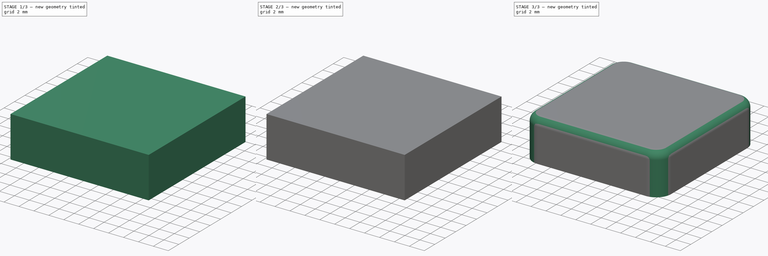
[diagram: build sequence overview — one tinted view per stage of 3, left to right]
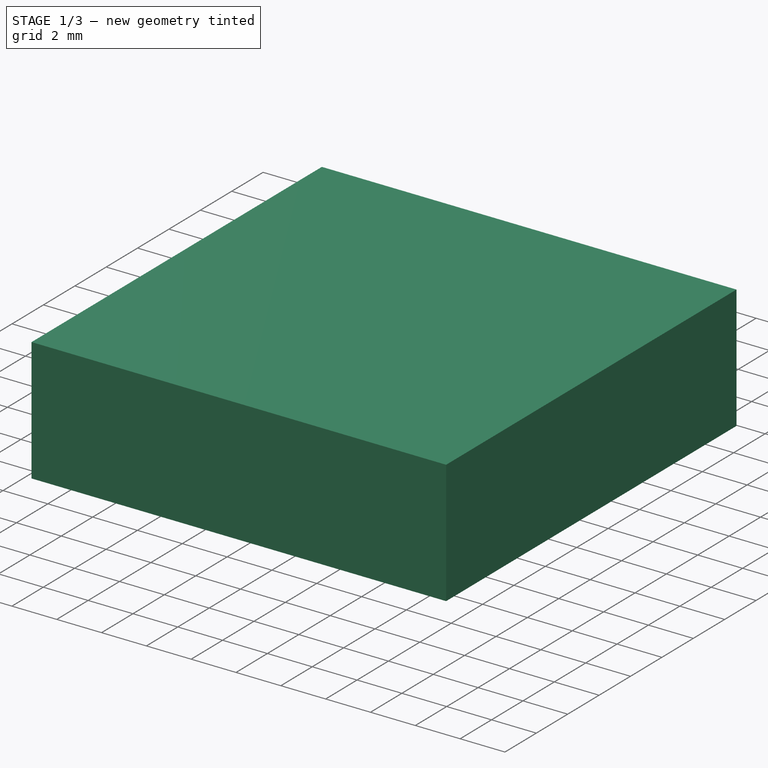
[diagram: stage 1 of 3 — iso view after this stage's code; geometry added in this stage tinted green]
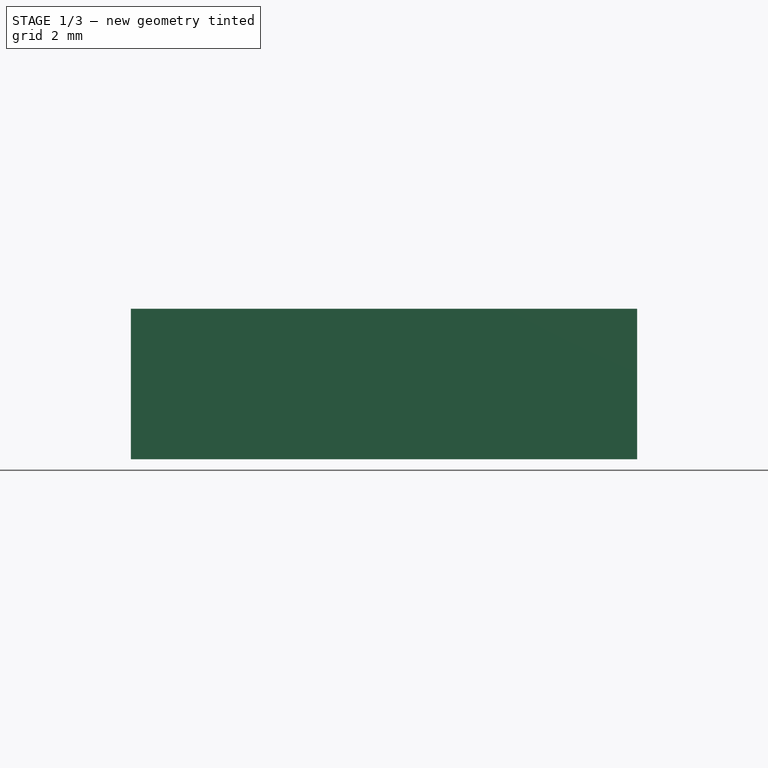
[diagram: stage 1 of 3 — front view after this stage's code; geometry added in this stage tinted green]
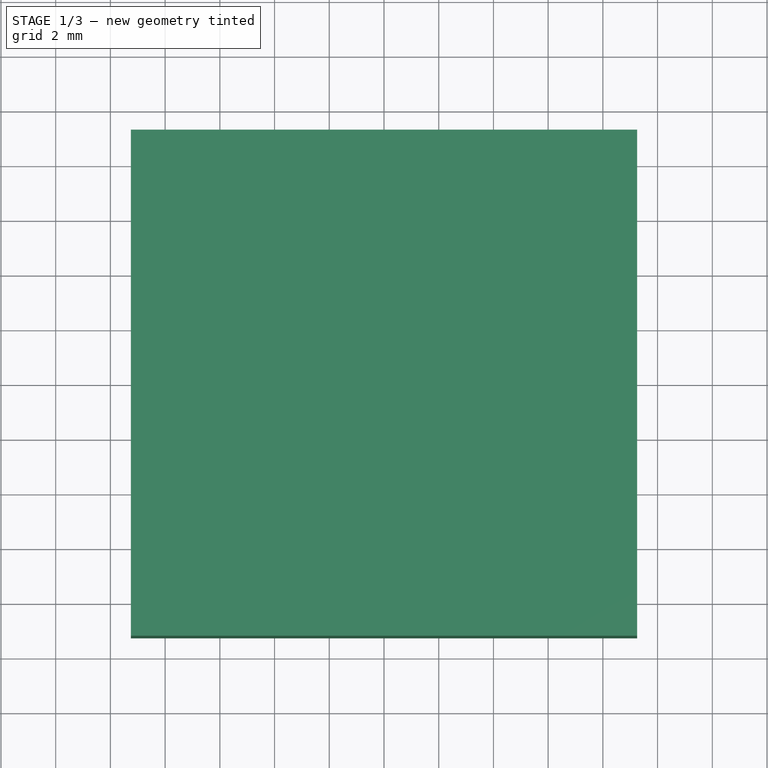
[diagram: stage 1 of 3 — top view after this stage's code; geometry added in this stage tinted green]
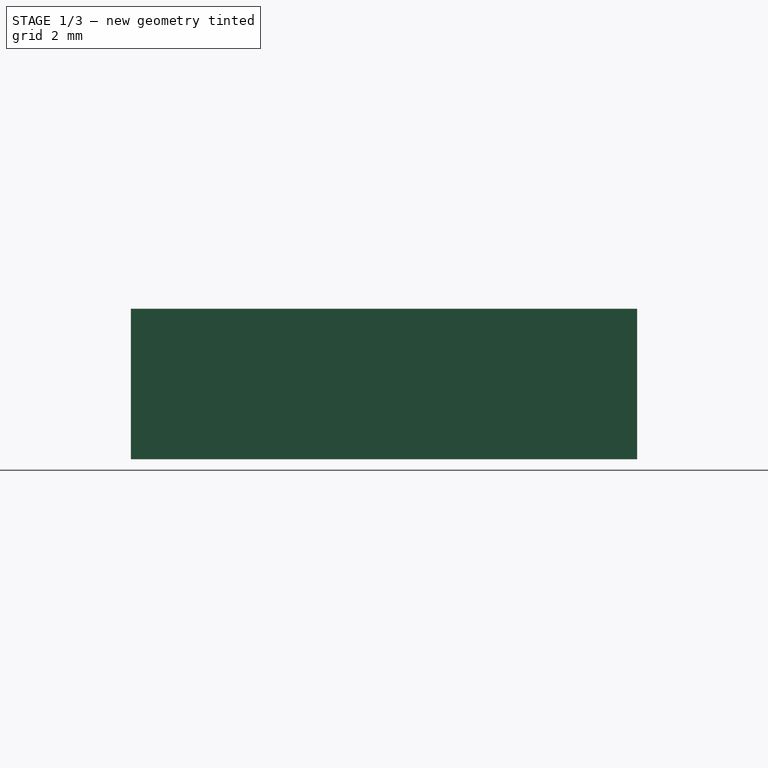
[diagram: stage 1 of 3 — right view after this stage's code; geometry added in this stage tinted green]
FCSTD DOCUMENT  (FreeCAD 0.19R24291 (Git))
Label: keycaps
License: All rights reserved
LicenseURL: http://en.wikipedia.org/wiki/All_rights_reserved
objects: Sketcher::SketchObject×5, PartDesign::Pad×3, PartDesign::Fillet×3, PartDesign::Pocket×2, Spreadsheet::Sheet×1, PartDesign::Body×1
note: 22 computed .brp shape members not serialized (recipe doc carries the construction recipe); baked Part::Feature solids carry a one-line shape summary decoded from their .brp

FEATURE [Sketcher::SketchObject] Sketch
  FullyConstrained = true
  MapMode = 5
  Support = -> [XY_Plane]
  expr: Constraints[10] = <<param>>.width
  sketch-geometry (4):
    g0: LineSegment StartX=-9.25 StartY=9.25 StartZ=0 EndX=9.25 EndY=9.25 EndZ=0
    g1: LineSegment StartX=9.25 StartY=9.25 StartZ=0 EndX=9.25 EndY=-9.25 EndZ=0
    g2: LineSegment StartX=9.25 StartY=-9.25 StartZ=0 EndX=-9.25 EndY=-9.25 EndZ=0
    g3: LineSegment StartX=-9.25 StartY=-9.25 StartZ=0 EndX=-9.25 EndY=9.25 EndZ=0
  constraints (11):
    c: Coincident(g0,g1)
    c: Coincident(g1,g2)
    c: Coincident(g2,g3)
    c: Coincident(g3,g0)
    c: Horizontal(g0)
    c: Horizontal(g2)
    c: Vertical(g1)
    c: Vertical(g3)
    c: Equal(g0,g1)
    c: Symmetric(g0,g1,g-1)
    c: DistanceX(g0,g0) = 18.5
FEATURE [PartDesign::Pad] Pad
  Direction = (1,1,1)
  Length = 5.5
  Length2 = 100
  Profile = -> Sketch
  Type = 0
  expr: Length = <<param>>.height
FEATURE [Sketcher::SketchObject] Sketch001
  FullyConstrained = true
  MapMode = 5
  Placement = pos=(0,0,0) rot=(1,0,0;3.14159rad)
  expr: Constraints[10] = <<param>>.innerWidth
  sketch-geometry (4):
    g0: LineSegment StartX=-7.75 StartY=7.75 StartZ=0 EndX=7.75 EndY=7.75 EndZ=0
    g1: LineSegment StartX=7.75 StartY=7.75 StartZ=0 EndX=7.75 EndY=-7.75 EndZ=0
    g2: LineSegment StartX=7.75 StartY=-7.75 StartZ=0 EndX=-7.75 EndY=-7.75 EndZ=0
    g3: LineSegment StartX=-7.75 StartY=-7.75 StartZ=0 EndX=-7.75 EndY=7.75 EndZ=0
  constraints (11):
    c: Coincident(g0,g1)
    c: Coincident(g1,g2)
    c: Coincident(g2,g3)
    c: Coincident(g3,g0)
    c: Horizontal(g0)
    c: Horizontal(g2)
    c: Vertical(g1)
    c: Vertical(g3)
    c: Symmetric(g0,g1,g-1)
    c: Equal(g0,g1)
    c: DistanceX(g0,g0) = 15.5
FEATURE [PartDesign::Pocket] Pocket
  BaseFeature = -> Pad
  Length = 4
  Length2 = 100
  Profile = -> Sketch001
  Type = 0
  expr: Length = <<param>>.innerPocket
FEATURE [Sketcher::SketchObject] Sketch002
  FullyConstrained = true
  MapMode = 5
  Placement = pos=(0,0,4) rot=(1,0,0;3.14159rad)
  Support = -> [Pocket]
  expr: Constraints[1] = <<param>>.stemRadius
  sketch-geometry (1):
    g0: Circle CenterX=0 CenterY=0 CenterZ=0 NormalX=0 NormalY=0 NormalZ=1 AngleXU=0 Radius=2.7059
  constraints (2):
    c: Coincident(g0,g-1)
    c: Radius(g0) = 2.7059
FEATURE [PartDesign::Pad] Pad001
  BaseFeature = -> Pocket
  Direction = (1,1,1)
  Length = 4
  Length2 = 100
  Profile = -> Sketch002
  Type = 0
  expr: Length = <<param>>.stemHeight
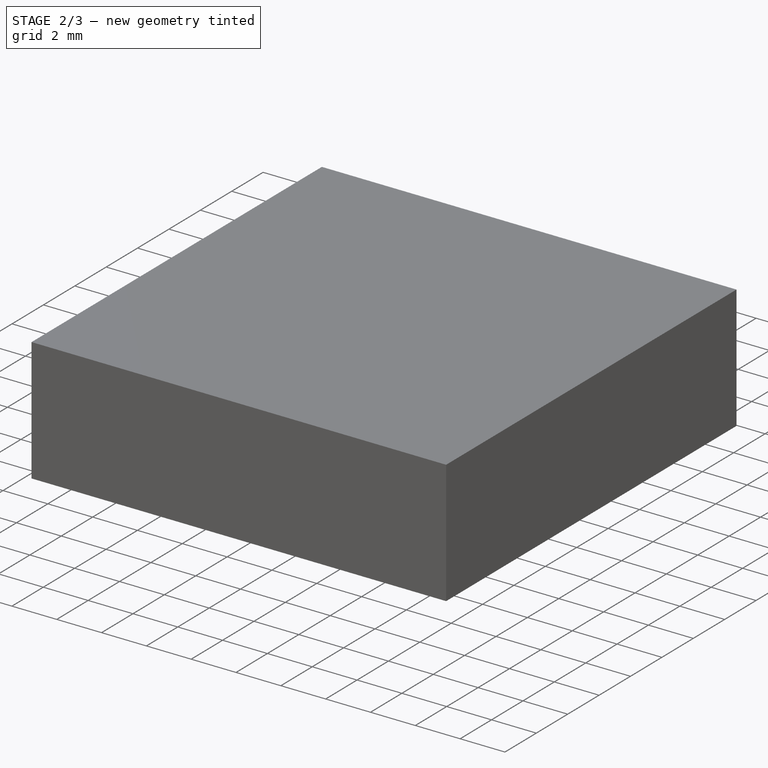
[diagram: stage 2 of 3 — iso view after this stage's code; geometry added in this stage tinted green]
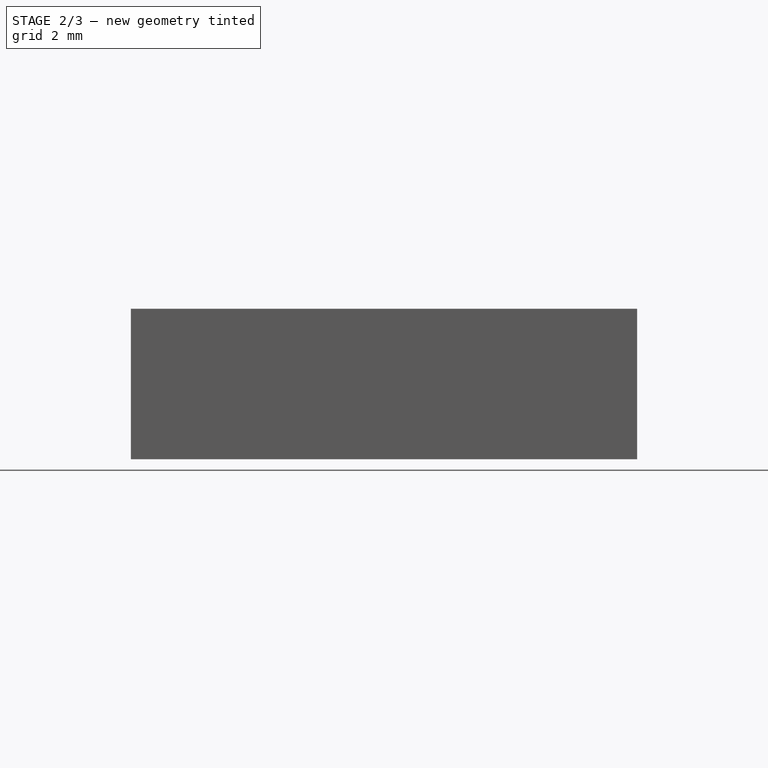
[diagram: stage 2 of 3 — front view after this stage's code; geometry added in this stage tinted green]
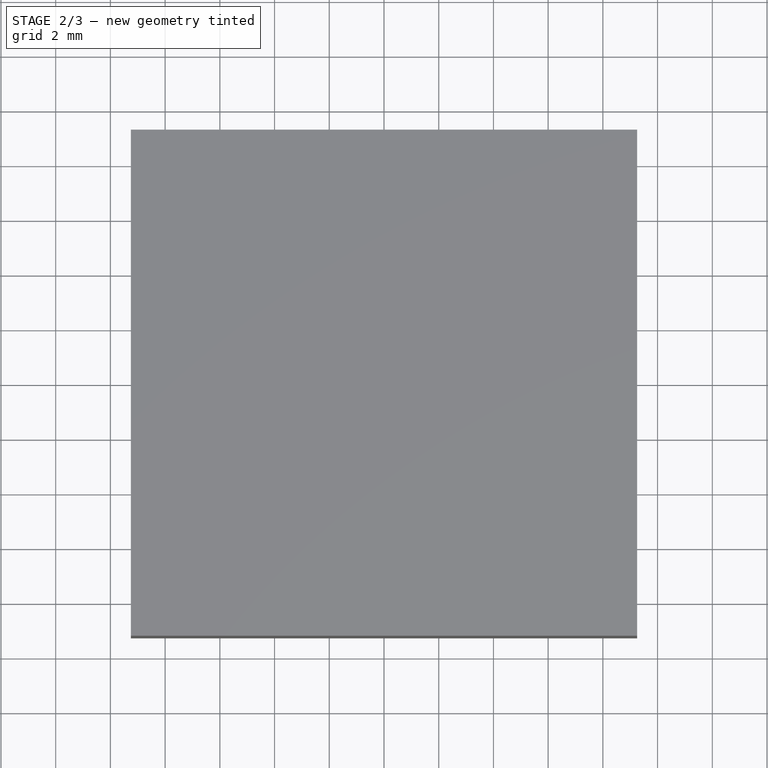
[diagram: stage 2 of 3 — top view after this stage's code; geometry added in this stage tinted green]
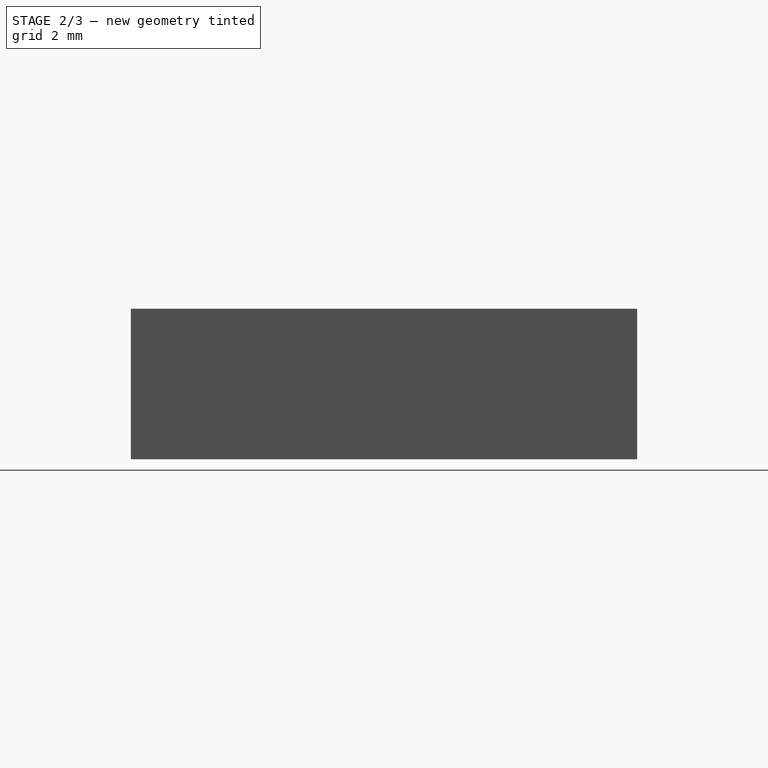
[diagram: stage 2 of 3 — right view after this stage's code; geometry added in this stage tinted green]
FEATURE [Sketcher::SketchObject] Sketch003
  FullyConstrained = true
  MapMode = 5
  Placement = pos=(0,0,0) rot=(1,0,0;3.14159rad)
  Support = -> [Pad001]
  expr: Constraints[19] = <<param>>.crossWidth
  expr: Constraints[20] = <<param>>.crossHeight
  expr: Constraints[29] = <<param>>.crossHeight
  sketch-geometry (12):
    g0: LineSegment StartX=-0.6219 StartY=2.0443 StartZ=0 EndX=0.6219 EndY=2.0443 EndZ=0
    g1: LineSegment StartX=0.6219 StartY=2.0443 StartZ=0 EndX=0.6219 EndY=0.6219 EndZ=0
    g2: LineSegment StartX=0.6219 StartY=-2.0443 StartZ=0 EndX=-0.6219 EndY=-2.0443 EndZ=0
    g3: LineSegment StartX=-0.6219 StartY=-2.0443 StartZ=0 EndX=-0.6219 EndY=-0.6219 EndZ=0
    g4: LineSegment StartX=-2.0443 StartY=0.6219 StartZ=0 EndX=-0.6219 EndY=0.6219 EndZ=0
    g5: LineSegment StartX=2.0443 StartY=0.6219 StartZ=0 EndX=2.0443 EndY=-0.6219 EndZ=0
    g6: LineSegment StartX=2.0443 StartY=-0.6219 StartZ=0 EndX=0.6219 EndY=-0.6219 EndZ=0
    g7: LineSegment StartX=-2.0443 StartY=-0.6219 StartZ=0 EndX=-2.0443 EndY=0.6219 EndZ=0
    g8: LineSegment StartX=-0.6219 StartY=0.6219 StartZ=0 EndX=-0.6219 EndY=2.0443 EndZ=0
    g9: LineSegment StartX=0.6219 StartY=-0.6219 StartZ=0 EndX=0.6219 EndY=-2.0443 EndZ=0
    g10: LineSegment StartX=0.6219 StartY=0.6219 StartZ=0 EndX=2.0443 EndY=0.6219 EndZ=0
    g11: LineSegment StartX=-0.6219 StartY=-0.6219 StartZ=0 EndX=-2.0443 EndY=-0.6219 EndZ=0
  constraints (30):
    c: Coincident(g0,g1)
    c: Coincident(g9,g2)
    c: Coincident(g2,g3)
    c: Coincident(g8,g0)
    c: Horizontal(g0)
    c: Horizontal(g2)
    c: Vertical(g1)
    c: Vertical(g3)
    c: Coincident(g10,g5)
    c: Coincident(g5,g6)
    c: Coincident(g11,g7)
    c: Coincident(g7,g4)
    c: Horizontal(g4)
    c: Horizontal(g6)
    c: Vertical(g5)
    c: Vertical(g7)
    c: Equal(g0,g5)
    c: Symmetric(g0,g9,g-1)
    c: Symmetric(g4,g5,g-1)
    c: DistanceX(g0,g0) = 1.2438
    c: DistanceX(g4,g10) = 4.0886
    c: Tangent(g3,g8)
    c: Tangent(g1,g9)
    c: Coincident(g4,g8)
    c: Coincident(g10,g1)
    c: Tangent(g4,g10)
    c: Coincident(g6,g9)
    c: Coincident(g11,g3)
    c: Tangent(g6,g11)
    c: DistanceY(g2,g0) = 4.0886
FEATURE [PartDesign::Pocket] Pocket001
  BaseFeature = -> Pad001
  Length = 4
  Length2 = 100
  Profile = -> Sketch003
  Type = 0
  expr: Length = <<param>>.stemHeight
FEATURE [Spreadsheet::Sheet] Spreadsheet  label="param"
  cells = A1=width; B1(width)=18.5; D1=tolerance; E1(tolerance)=0.05; A2=height; B2(height)=5.5; A3=wallThickness; B3(wallThickness)=1.5; A4=innerWidth; B4(innerWidth)==width - wallThickness * 2; A5=innerPocket; B5(innerPocket)==height - B3; A6=stemRadius; B6(stemRadius)==2.7559 - tolerance; A7=stemRecess; B7(stemRecess)=0; A8=stemHeight; B8(stemHeight)==innerPocket - stemRecess; A9=crossWidth; B9(crossWidth)==1.1938 + tolerance; A10=crossHeight; B10(crossHeight)==4.0386 + tolerance; A11=outerFillet; B11(outerFillet)=2; A12=innerFillet; B12(innerFillet)==outerFillet * 0.75; A13=rfWidth; B13(rfWidth)==stemRadius / 2; C13=*rf=reinforcement; A14=rfHeight; B14(rfHeight)==rfWidth; A15=top_fillet; B15(top_fillet)=1; A16=sinkRadius; B16(sinkRadius)==width / 2 - 1
FEATURE [PartDesign::Fillet] Fillet001  label="innerFillet"
  Base = -> Pocket001 [Edge18,Edge22,Edge20,Edge17]
  BaseFeature = -> Pocket001
  Radius = 1.5
  SupportTransform = false
  expr: Radius = <<param>>.innerFillet
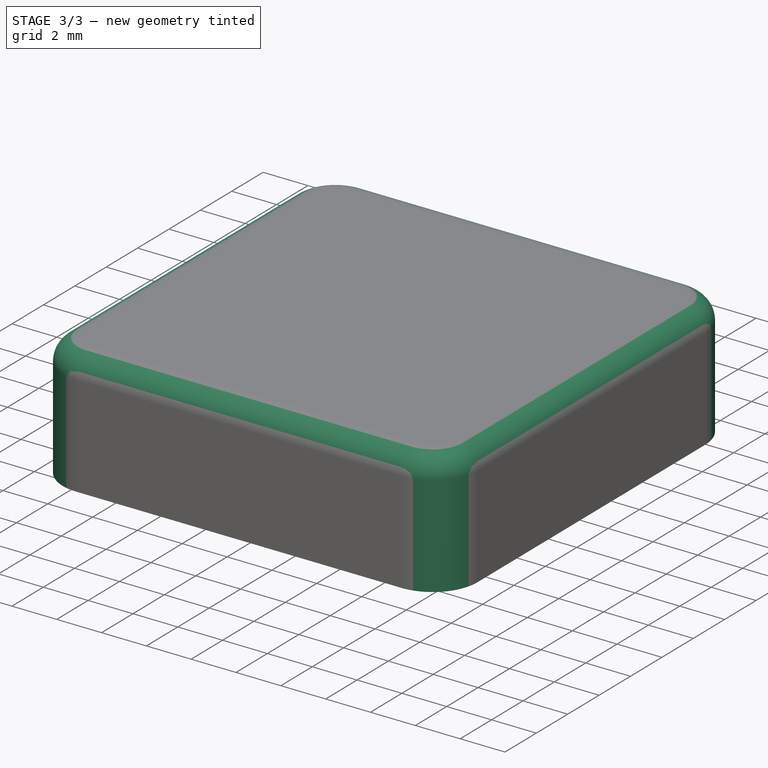
[diagram: stage 3 of 3 — iso view after this stage's code; geometry added in this stage tinted green]
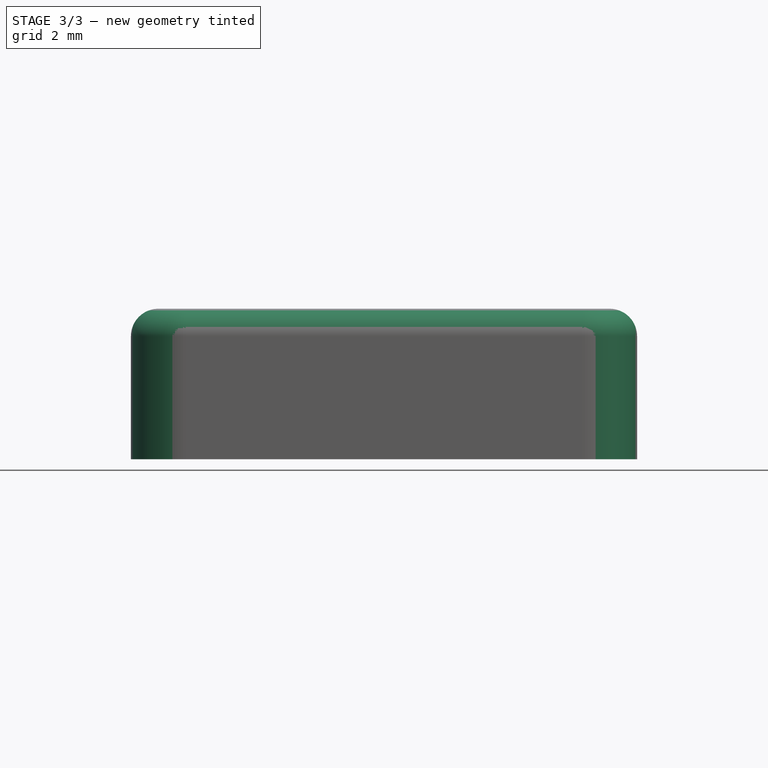
[diagram: stage 3 of 3 — front view after this stage's code; geometry added in this stage tinted green]
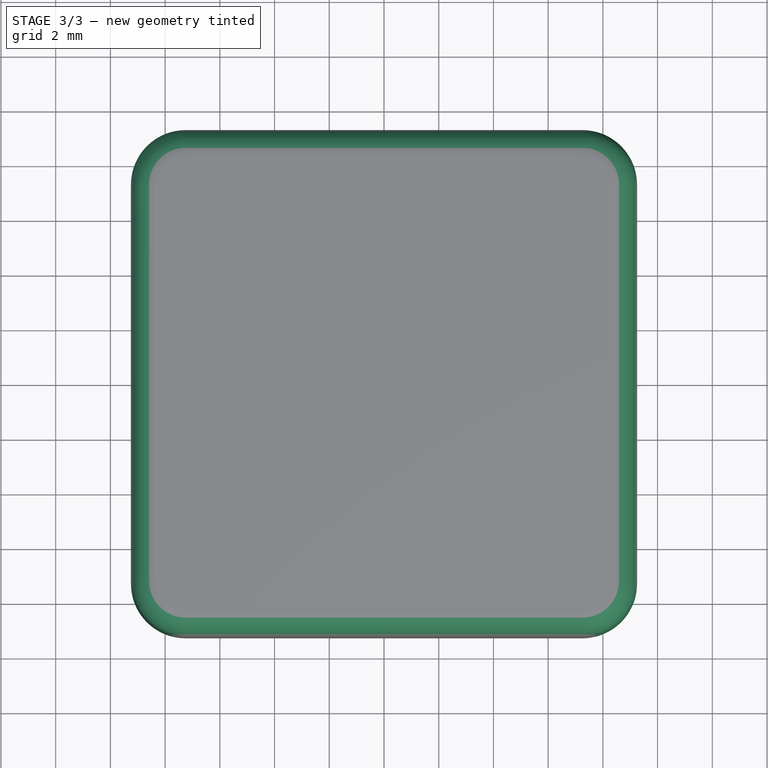
[diagram: stage 3 of 3 — top view after this stage's code; geometry added in this stage tinted green]
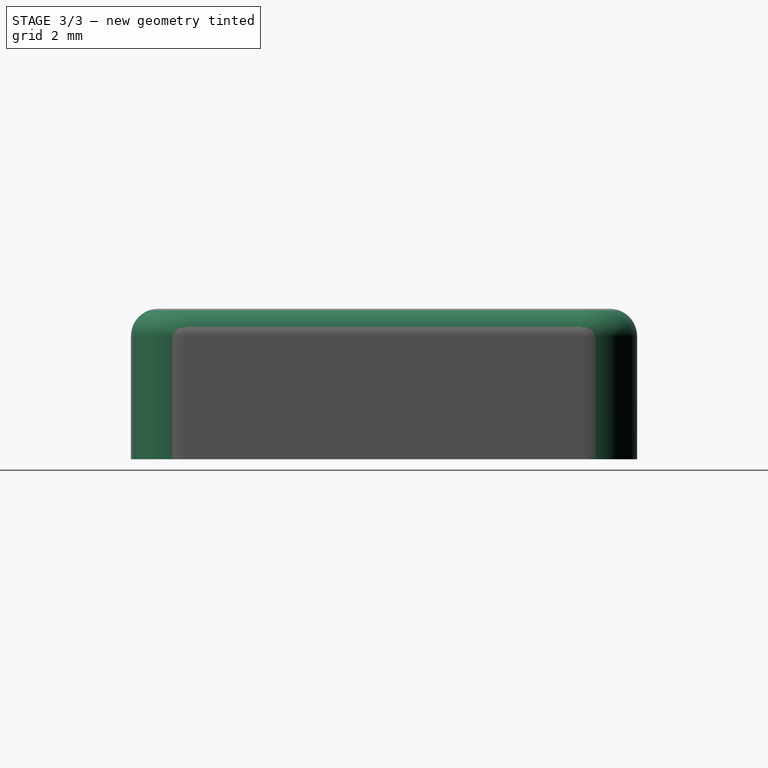
[diagram: stage 3 of 3 — right view after this stage's code; geometry added in this stage tinted green]
FEATURE [PartDesign::Fillet] Fillet
  Base = -> Fillet001 [Edge34,Edge32,Edge29,Edge30]
  BaseFeature = -> Fillet001
  Radius = 2
  SupportTransform = false
  expr: Radius = <<param>>.outerFillet
FEATURE [Sketcher::SketchObject] Sketch004
  FullyConstrained = true
  MapMode = 5
  Placement = pos=(0,0,4) rot=(1,0,0;3.14159rad)
  Support = -> [Fillet]
  expr: Constraints[29] = <<param>>.innerWidth
  expr: Constraints[20] = <<param>>.innerWidth
  expr: Constraints[19] = Spreadsheet.rfWidth
  sketch-geometry (12):
    g0: LineSegment StartX=-0.676475 StartY=7.75 StartZ=0 EndX=0.676475 EndY=7.75 EndZ=0
    g1: LineSegment StartX=0.676475 StartY=7.75 StartZ=0 EndX=0.676475 EndY=0.676475 EndZ=0
    g2: LineSegment StartX=0.676475 StartY=-7.75 StartZ=0 EndX=-0.676475 EndY=-7.75 EndZ=0
    g3: LineSegment StartX=-0.676475 StartY=-7.75 StartZ=0 EndX=-0.676475 EndY=-0.676475 EndZ=0
    g4: LineSegment StartX=-7.75 StartY=0.676475 StartZ=0 EndX=-0.676475 EndY=0.676475 EndZ=0
    g5: LineSegment StartX=7.75 StartY=0.676475 StartZ=0 EndX=7.75 EndY=-0.676475 EndZ=0
    g6: LineSegment StartX=7.75 StartY=-0.676475 StartZ=0 EndX=0.676475 EndY=-0.676475 EndZ=0
    g7: LineSegment StartX=-7.75 StartY=-0.676475 StartZ=0 EndX=-7.75 EndY=0.676475 EndZ=0
    g8: LineSegment StartX=-0.676475 StartY=0.676475 StartZ=0 EndX=-0.676475 EndY=7.75 EndZ=0
    g9: LineSegment StartX=0.676475 StartY=-0.676475 StartZ=0 EndX=0.676475 EndY=-7.75 EndZ=0
    g10: LineSegment StartX=-0.676475 StartY=-0.676475 StartZ=0 EndX=-7.75 EndY=-0.676475 EndZ=0
    g11: LineSegment StartX=0.676475 StartY=0.676475 StartZ=0 EndX=7.75 EndY=0.676475 EndZ=0
  constraints (30):
    c: Coincident(g0,g1)
    c: Coincident(g9,g2)
    c: Coincident(g2,g3)
    c: Coincident(g8,g0)
    c: Horizontal(g0)
    c: Horizontal(g2)
    c: Vertical(g1)
    c: Vertical(g3)
    c: Coincident(g11,g5)
    c: Coincident(g5,g6)
    c: Coincident(g10,g7)
    c: Coincident(g7,g4)
    c: Horizontal(g4)
    c: Horizontal(g6)
    c: Vertical(g5)
    c: Vertical(g7)
    c: Symmetric(g0,g9,g-1)
    c: Symmetric(g4,g5,g-1)
    c: Equal(g0,g5)
    c: DistanceX(g0,g0) = 1.35295
    c: DistanceX(g4,g11) = 15.5
    c: Tangent(g3,g8)
    c: Tangent(g1,g9)
    c: Coincident(g6,g9)
    c: Coincident(g10,g3)
    c: Tangent(g6,g10)
    c: Coincident(g4,g8)
    c: Coincident(g11,g1)
    c: Tangent(g4,g11)
    c: DistanceY(g2,g0) = 15.5
FEATURE [PartDesign::Pad] Pad002
  BaseFeature = -> Fillet
  Direction = (1,1,1)
  Length = 1.35295
  Length2 = 100
  Profile = -> Sketch004
  Type = 0
  expr: Length = <<param>>.rfHeight
FEATURE [PartDesign::Fillet] Fillet002
  Base = -> Pad002 [Face18]
  BaseFeature = -> Pad002
  Radius = 1
  SupportTransform = false
  expr: Radius = <<param>>.top_fillet
FEATURE [PartDesign::Body] Body
  Group = -> [Sketch,Pad,Sketch001,Pocket,Sketch002,Pad001,Sketch003,Pocket001,Fillet001,Fillet,Sketch004,Pad002,Fillet002]
  Origin = -> Origin
  Tip = -> Fillet002
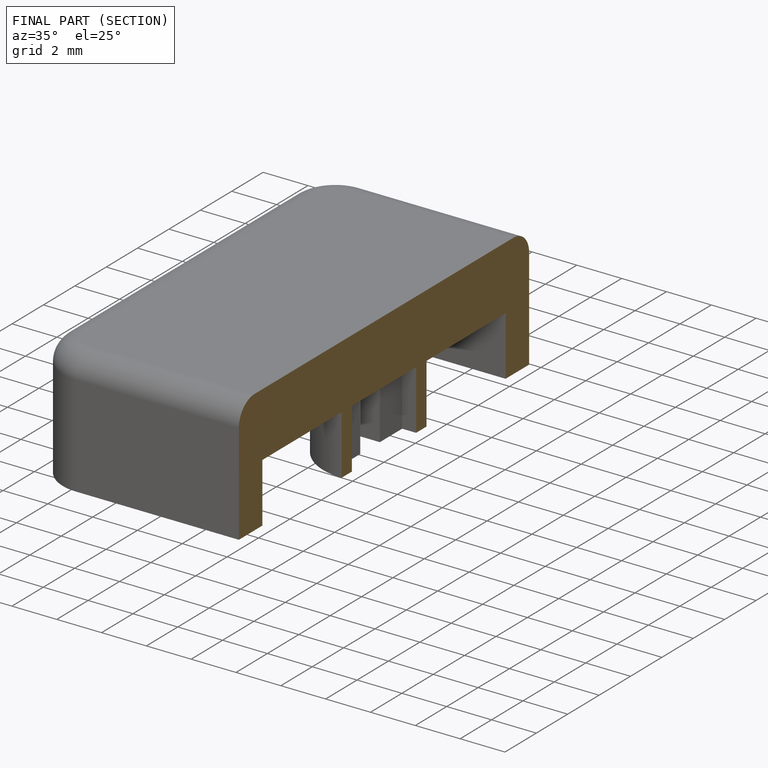
[diagram: finished part — half-section view (interior)]
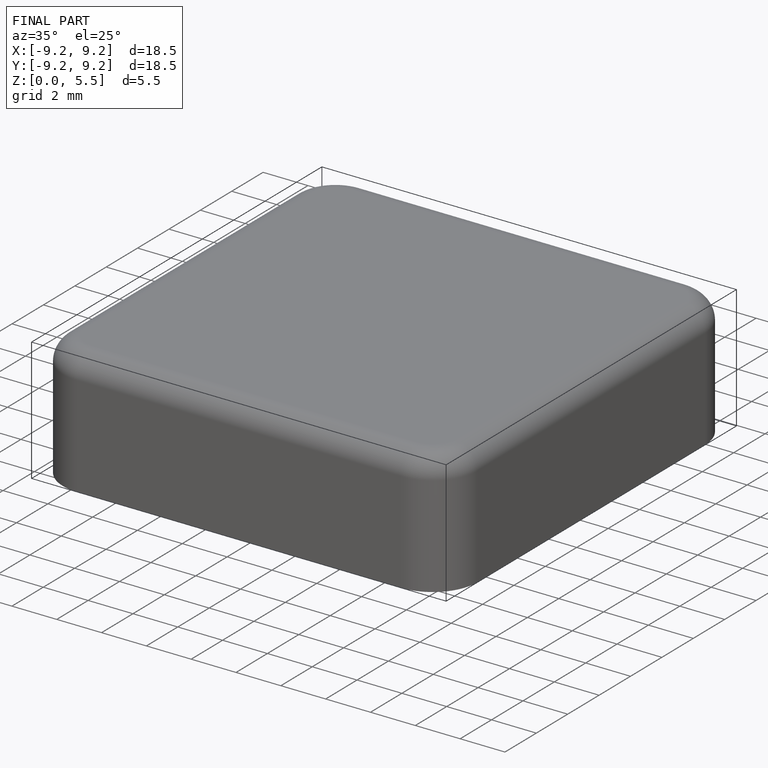
[diagram: finished part — iso view with bounding-box wireframe]
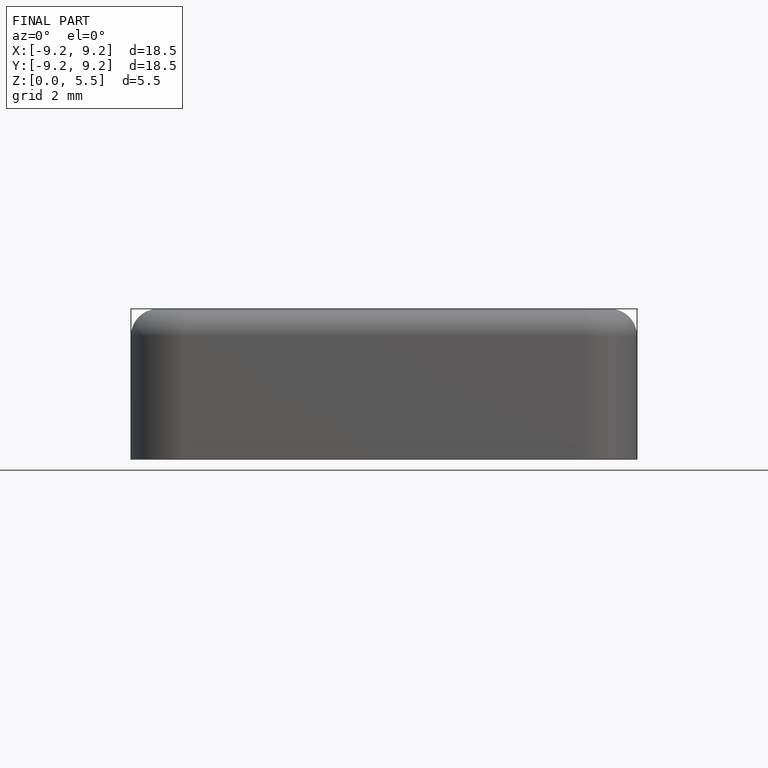
[diagram: finished part — front view with bounding-box wireframe]
